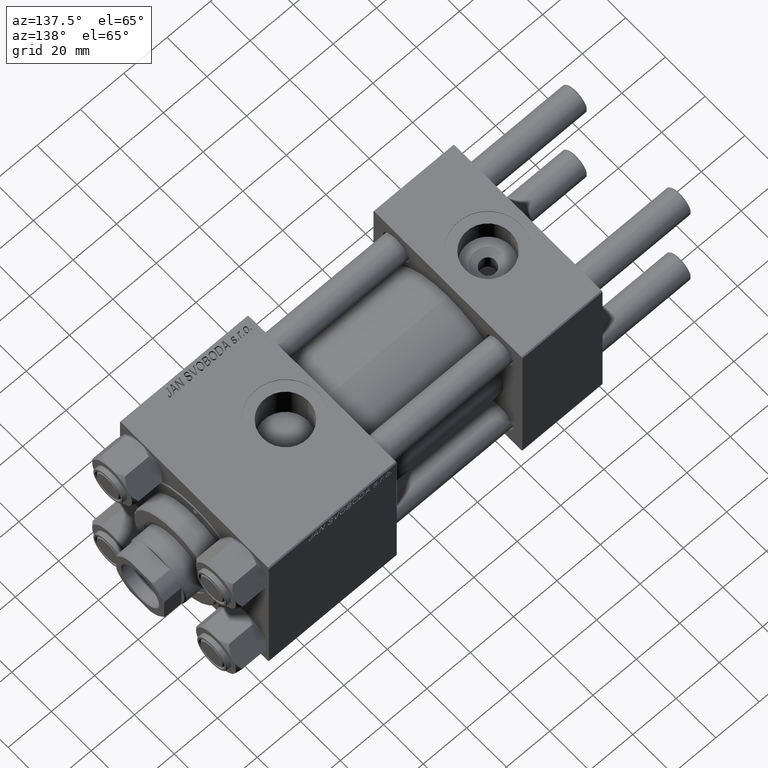
[diagram: clean part render]
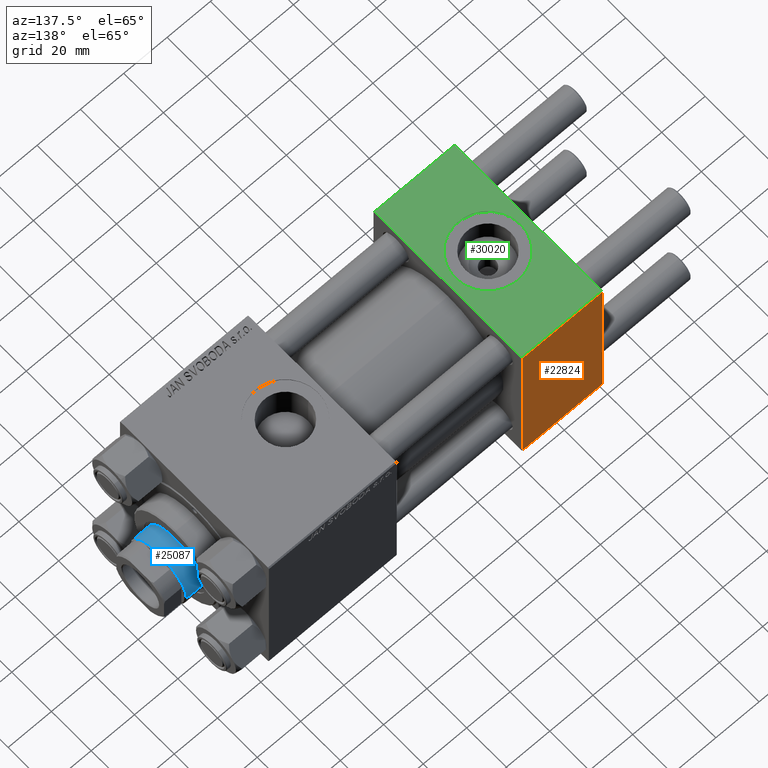
[diagram: same view with three faces highlighted in distinct colors, each labeled with its STEP entity id]
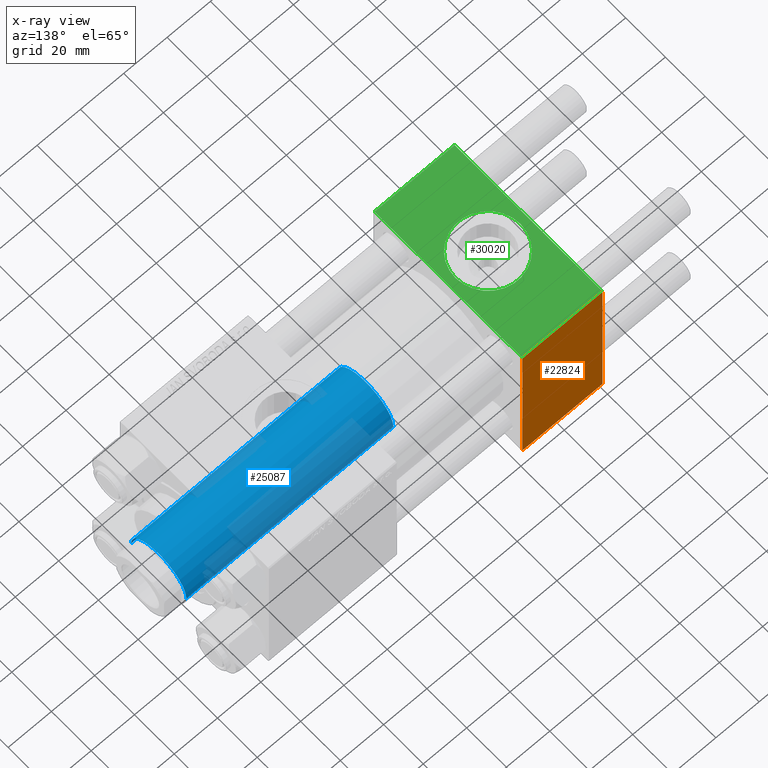
[diagram: x-ray of the same camera — body ghosted, the three highlighted faces saturated]
A machine part, auxiliary view with three faces highlighted in distinct colors.
The next image is the same camera in x-ray (body ghosted, the three faces saturated) — at least one of them is partly hidden behind the body in this view.
Their STEP definitions:

[orange] entity #22824 — the highlighted planar face has unit normal (0, 1, 0).
#668 = CARTESIAN_POINT ( 'NONE',  ( 37.00000000000000000, 37.49999999999999289, 37.00000000000000000 ) ) ;
#1356 = ORIENTED_EDGE ( 'NONE', *, *, #35352, .T. ) ;
#3395 = VERTEX_POINT ( 'NONE', #16113 ) ;
#3396 = EDGE_CURVE ( 'NONE', #6969, #21726, #12087, .T. ) ;
#4087 = VERTEX_POINT ( 'NONE', #45140 ) ;
#6479 = ORIENTED_EDGE ( 'NONE', *, *, #3396, .F. ) ;
#6925 = ORIENTED_EDGE ( 'NONE', *, *, #14413, .T. ) ;
#6969 = VERTEX_POINT ( 'NONE', #7191 ) ;
#7191 = CARTESIAN_POINT ( 'NONE',  ( 0.000000000000000000, 37.49999999999999289, 37.00000000000000000 ) ) ;
#12087 = LINE ( 'NONE', #27959, #22085 ) ;
#12335 = FACE_OUTER_BOUND ( 'NONE', #36108, .T. ) ;
#14413 = EDGE_CURVE ( 'NONE', #3395, #21726, #17868, .T. ) ;
#15674 = EDGE_CURVE ( 'NONE', #6969, #4087, #20854, .T. ) ;
#16113 = CARTESIAN_POINT ( 'NONE',  ( 37.00000000000000000, 37.49999999999999289, -36.99999999999998579 ) ) ;
#17868 = LINE ( 'NONE', #33239, #24748 ) ;
#20609 = DIRECTION ( 'NONE',  ( 1.000000000000000000, 0.000000000000000000, 0.000000000000000000 ) ) ;
#20854 = LINE ( 'NONE', #668, #40107 ) ;
#21726 = VERTEX_POINT ( 'NONE', #46283 ) ;
#22085 = VECTOR ( 'NONE', #47360, 1000.000000000000000 ) ;
#22824 = ADVANCED_FACE ( 'NONE', ( #12335 ), #46868, .T. ) ;
#23268 = LINE ( 'NONE', #47213, #43602 ) ;
#24748 = VECTOR ( 'NONE', #48626, 1000.000000000000000 ) ;
#27959 = CARTESIAN_POINT ( 'NONE',  ( 0.000000000000000000, 37.49999999999999289, 37.50000000000000000 ) ) ;
#33239 = CARTESIAN_POINT ( 'NONE',  ( 37.00000000000000000, 37.49999999999999289, -36.99999999999998579 ) ) ;
#34368 = AXIS2_PLACEMENT_3D ( 'NONE', #47354, #36261, #36019 ) ;
#34957 = ORIENTED_EDGE ( 'NONE', *, *, #15674, .T. ) ;
#35352 = EDGE_CURVE ( 'NONE', #4087, #3395, #23268, .T. ) ;
#36019 = DIRECTION ( 'NONE',  ( 0.000000000000000000, -0.000000000000000000, 1.000000000000000000 ) ) ;
#36108 = EDGE_LOOP ( 'NONE', ( #1356, #6925, #6479, #34957 ) ) ;
#36261 = DIRECTION ( 'NONE',  ( -0.000000000000000000, 1.000000000000000000, 0.000000000000000000 ) ) ;
#40107 = VECTOR ( 'NONE', #20609, 1000.000000000000000 ) ;
#43602 = VECTOR ( 'NONE', #46970, 1000.000000000000000 ) ;
#45140 = CARTESIAN_POINT ( 'NONE',  ( 37.00000000000000000, 37.49999999999999289, 37.00000000000000000 ) ) ;
#46283 = CARTESIAN_POINT ( 'NONE',  ( 0.000000000000000000, 37.49999999999999289, -36.99999999999998579 ) ) ;
#46868 = PLANE ( 'NONE',  #34368 ) ;
#46970 = DIRECTION ( 'NONE',  ( 0.000000000000000000, 0.000000000000000000, -1.000000000000000000 ) ) ;
#47213 = CARTESIAN_POINT ( 'NONE',  ( 37.00000000000000000, 37.49999999999999289, 37.50000000000000000 ) ) ;
#47354 = CARTESIAN_POINT ( 'NONE',  ( 37.00000000000000000, 37.49999999999999289, 37.50000000000000000 ) ) ;
#47360 = DIRECTION ( 'NONE',  ( 0.000000000000000000, 0.000000000000000000, -1.000000000000000000 ) ) ;
#48626 = DIRECTION ( 'NONE',  ( -1.000000000000000000, 0.000000000000000000, 0.000000000000000000 ) ) ;

[blue] entity #25087 — the highlighted cylindrical surface (partial cylindrical patch) has radius 14 mm, axis along (-1, 0, 0).
#3169 = EDGE_CURVE ( 'NONE', #17283, #17488, #29315, .T. ) ;
#3886 = LINE ( 'NONE', #26368, #11987 ) ;
#4194 = CARTESIAN_POINT ( 'NONE',  ( 0.000000000000000000, 0.000000000000000000, 134.0000000000000000 ) ) ;
#5214 = CARTESIAN_POINT ( 'NONE',  ( -14.00000000000000178, 0.000000000000000000, 134.0000000000000000 ) ) ;
#6041 = VERTEX_POINT ( 'NONE', #9168 ) ;
#7627 = DIRECTION ( 'NONE',  ( 0.000000000000000000, 0.000000000000000000, -1.000000000000000000 ) ) ;
#7994 = CYLINDRICAL_SURFACE ( 'NONE', #13503, 14.00000000000000178 ) ;
#9168 = CARTESIAN_POINT ( 'NONE',  ( 14.00000000000000178, 1.714505518806294835E-15, 38.00000000000000000 ) ) ;
#9291 = CARTESIAN_POINT ( 'NONE',  ( 0.000000000000000000, 0.000000000000000000, 38.00000000000000000 ) ) ;
#11368 = VECTOR ( 'NONE', #13550, 1000.000000000000000 ) ;
#11562 = VERTEX_POINT ( 'NONE', #22104 ) ;
#11987 = VECTOR ( 'NONE', #37974, 1000.000000000000000 ) ;
#13503 = AXIS2_PLACEMENT_3D ( 'NONE', #4194, #27164, #39514 ) ;
#13530 = CARTESIAN_POINT ( 'NONE',  ( -14.00000000000000178, 0.000000000000000000, 133.5000000000000284 ) ) ;
#13550 = DIRECTION ( 'NONE',  ( -0.000000000000000000, -0.000000000000000000, -1.000000000000000000 ) ) ;
#14534 = EDGE_LOOP ( 'NONE', ( #30968, #18400, #20709, #31788 ) ) ;
#15617 = AXIS2_PLACEMENT_3D ( 'NONE', #9291, #28212, #24667 ) ;
#17283 = VERTEX_POINT ( 'NONE', #41309 ) ;
#17488 = VERTEX_POINT ( 'NONE', #13530 ) ;
#17640 = EDGE_CURVE ( 'NONE', #17283, #6041, #3886, .T. ) ;
#18400 = ORIENTED_EDGE ( 'NONE', *, *, #3169, .T. ) ;
#19224 = DIRECTION ( 'NONE',  ( 1.000000000000000000, 0.000000000000000000, 0.000000000000000000 ) ) ;
#19783 = EDGE_CURVE ( 'NONE', #17488, #11562, #48084, .T. ) ;
#20709 = ORIENTED_EDGE ( 'NONE', *, *, #19783, .T. ) ;
#22104 = CARTESIAN_POINT ( 'NONE',  ( -14.00000000000000178, 0.000000000000000000, 38.00000000000000000 ) ) ;
#23366 = FACE_OUTER_BOUND ( 'NONE', #14534, .T. ) ;
#24667 = DIRECTION ( 'NONE',  ( 1.000000000000000000, 0.000000000000000000, 0.000000000000000000 ) ) ;
#25087 = ADVANCED_FACE ( 'NONE', ( #23366 ), #7994, .T. ) ;
#25330 = AXIS2_PLACEMENT_3D ( 'NONE', #27045, #7627, #19224 ) ;
#26368 = CARTESIAN_POINT ( 'NONE',  ( 14.00000000000000178, 1.714505518806294835E-15, 134.0000000000000000 ) ) ;
#27045 = CARTESIAN_POINT ( 'NONE',  ( 0.000000000000000000, 0.000000000000000000, 133.5000000000000284 ) ) ;
#27164 = DIRECTION ( 'NONE',  ( -0.000000000000000000, -0.000000000000000000, -1.000000000000000000 ) ) ;
#28212 = DIRECTION ( 'NONE',  ( 0.000000000000000000, 0.000000000000000000, 1.000000000000000000 ) ) ;
#29315 = CIRCLE ( 'NONE', #25330, 14.00000000000000178 ) ;
#30968 = ORIENTED_EDGE ( 'NONE', *, *, #17640, .F. ) ;
#31788 = ORIENTED_EDGE ( 'NONE', *, *, #44232, .T. ) ;
#37974 = DIRECTION ( 'NONE',  ( -0.000000000000000000, -0.000000000000000000, -1.000000000000000000 ) ) ;
#38973 = CIRCLE ( 'NONE', #15617, 14.00000000000000178 ) ;
#39514 = DIRECTION ( 'NONE',  ( -1.000000000000000000, 0.000000000000000000, 0.000000000000000000 ) ) ;
#41309 = CARTESIAN_POINT ( 'NONE',  ( 14.00000000000000178, 1.714505518806294835E-15, 133.5000000000000284 ) ) ;
#44232 = EDGE_CURVE ( 'NONE', #11562, #6041, #38973, .T. ) ;
#48084 = LINE ( 'NONE', #5214, #11368 ) ;

[green] entity #30020 — the highlighted planar face has unit normal (0, 0, -1).
#1011 = CARTESIAN_POINT ( 'NONE',  ( 37.00000000000000000, 37.49999999999999289, 37.50000000000000000 ) ) ;
#1534 = AXIS2_PLACEMENT_3D ( 'NONE', #1011, #38400, #31064 ) ;
#4430 = VERTEX_POINT ( 'NONE', #4680 ) ;
#4657 = VERTEX_POINT ( 'NONE', #40005 ) ;
#4680 = CARTESIAN_POINT ( 'NONE',  ( 0.000000000000000000, -37.00000000000000711, 37.49999999999999289 ) ) ;
#5173 = LINE ( 'NONE', #9472, #23926 ) ;
#5221 = CARTESIAN_POINT ( 'NONE',  ( 37.00000000000000000, -37.00000000000000711, 37.49999999999999289 ) ) ;
#5438 = EDGE_CURVE ( 'NONE', #45165, #4430, #33223, .T. ) ;
#5752 = DIRECTION ( 'NONE',  ( 0.000000000000000000, -1.000000000000000000, -9.251858538542971581E-17 ) ) ;
#6861 = VECTOR ( 'NONE', #5752, 1000.000000000000000 ) ;
#8162 = CARTESIAN_POINT ( 'NONE',  ( 18.50000000000000000, -5.204170427930421283E-15, 37.50000000000000000 ) ) ;
#9032 = ORIENTED_EDGE ( 'NONE', *, *, #43590, .T. ) ;
#9267 = LINE ( 'NONE', #5221, #41939 ) ;
#9472 = CARTESIAN_POINT ( 'NONE',  ( 37.00000000000000000, 37.49999999999999289, 37.50000000000000000 ) ) ;
#10979 = CIRCLE ( 'NONE', #14175, 15.00000000000000355 ) ;
#11046 = EDGE_CURVE ( 'NONE', #23768, #4657, #10979, .T. ) ;
#14175 = AXIS2_PLACEMENT_3D ( 'NONE', #8162, #38934, #49528 ) ;
#16428 = CIRCLE ( 'NONE', #37375, 15.00000000000000355 ) ;
#18046 = CARTESIAN_POINT ( 'NONE',  ( 37.00000000000000000, 36.99999999999999289, 37.50000000000000000 ) ) ;
#19303 = DIRECTION ( 'NONE',  ( 1.000000000000000000, 0.000000000000000000, 0.000000000000000000 ) ) ;
#21606 = ORIENTED_EDGE ( 'NONE', *, *, #36608, .T. ) ;
#21656 = VERTEX_POINT ( 'NONE', #18046 ) ;
#23001 = PLANE ( 'NONE',  #1534 ) ;
#23592 = ORIENTED_EDGE ( 'NONE', *, *, #45624, .F. ) ;
#23768 = VERTEX_POINT ( 'NONE', #25467 ) ;
#23926 = VECTOR ( 'NONE', #31674, 1000.000000000000000 ) ;
#23949 = EDGE_CURVE ( 'NONE', #21656, #39939, #5173, .T. ) ;
#23985 = FACE_OUTER_BOUND ( 'NONE', #35388, .T. ) ;
#24645 = DIRECTION ( 'NONE',  ( 1.000000000000000000, 0.000000000000000000, 0.000000000000000000 ) ) ;
#25467 = CARTESIAN_POINT ( 'NONE',  ( 33.50000000000000000, -5.204170427930421283E-15, 37.50000000000000000 ) ) ;
#26332 = ORIENTED_EDGE ( 'NONE', *, *, #23949, .F. ) ;
#29270 = ORIENTED_EDGE ( 'NONE', *, *, #11046, .F. ) ;
#30020 = ADVANCED_FACE ( 'NONE', ( #43176, #23985 ), #23001, .F. ) ;
#31064 = DIRECTION ( 'NONE',  ( 0.000000000000000000, 1.000000000000000000, 9.251858538542971581E-17 ) ) ;
#31674 = DIRECTION ( 'NONE',  ( 0.000000000000000000, -1.000000000000000000, -9.251858538542971581E-17 ) ) ;
#32750 = CARTESIAN_POINT ( 'NONE',  ( 0.000000000000000000, 36.99999999999999289, 37.50000000000000000 ) ) ;
#33223 = LINE ( 'NONE', #41306, #6861 ) ;
#33266 = VECTOR ( 'NONE', #33579, 1000.000000000000000 ) ;
#33579 = DIRECTION ( 'NONE',  ( -1.000000000000000000, 0.000000000000000000, 0.000000000000000000 ) ) ;
#35388 = EDGE_LOOP ( 'NONE', ( #49548, #21606, #26332, #9032 ) ) ;
#36608 = EDGE_CURVE ( 'NONE', #4430, #39939, #9267, .T. ) ;
#37375 = AXIS2_PLACEMENT_3D ( 'NONE', #38481, #42270, #19303 ) ;
#38400 = DIRECTION ( 'NONE',  ( 0.000000000000000000, 9.251858538542971581E-17, -1.000000000000000000 ) ) ;
#38481 = CARTESIAN_POINT ( 'NONE',  ( 18.50000000000000000, -5.204170427930421283E-15, 37.50000000000000000 ) ) ;
#38934 = DIRECTION ( 'NONE',  ( 0.000000000000000000, 0.000000000000000000, 1.000000000000000000 ) ) ;
#39939 = VERTEX_POINT ( 'NONE', #45870 ) ;
#40005 = CARTESIAN_POINT ( 'NONE',  ( 3.499999999999997780, -3.367200229209391300E-15, 37.50000000000000000 ) ) ;
#41306 = CARTESIAN_POINT ( 'NONE',  ( 0.000000000000000000, 37.49999999999999289, 37.50000000000000000 ) ) ;
#41939 = VECTOR ( 'NONE', #24645, 1000.000000000000000 ) ;
#42270 = DIRECTION ( 'NONE',  ( 0.000000000000000000, 0.000000000000000000, 1.000000000000000000 ) ) ;
#43176 = FACE_BOUND ( 'NONE', #49348, .T. ) ;
#43590 = EDGE_CURVE ( 'NONE', #21656, #45165, #45190, .T. ) ;
#45165 = VERTEX_POINT ( 'NONE', #32750 ) ;
#45190 = LINE ( 'NONE', #45949, #33266 ) ;
#45624 = EDGE_CURVE ( 'NONE', #4657, #23768, #16428, .T. ) ;
#45870 = CARTESIAN_POINT ( 'NONE',  ( 37.00000000000000000, -37.00000000000000711, 37.49999999999999289 ) ) ;
#45949 = CARTESIAN_POINT ( 'NONE',  ( 0.000000000000000000, 36.99999999999999289, 37.50000000000000000 ) ) ;
#49348 = EDGE_LOOP ( 'NONE', ( #29270, #23592 ) ) ;
#49528 = DIRECTION ( 'NONE',  ( 1.000000000000000000, 0.000000000000000000, 0.000000000000000000 ) ) ;
#49548 = ORIENTED_EDGE ( 'NONE', *, *, #5438, .T. ) ;